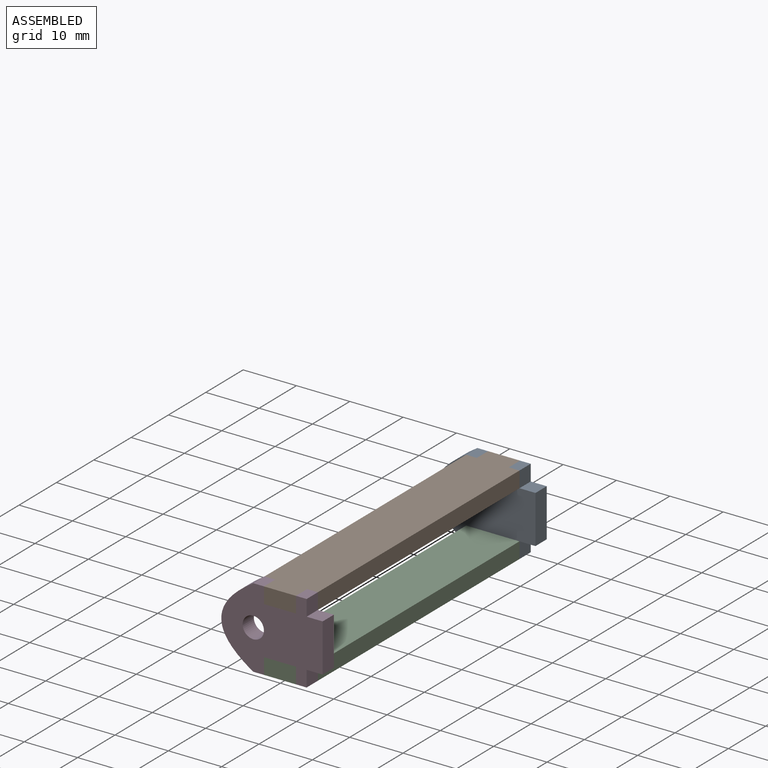
[diagram: assembled view]
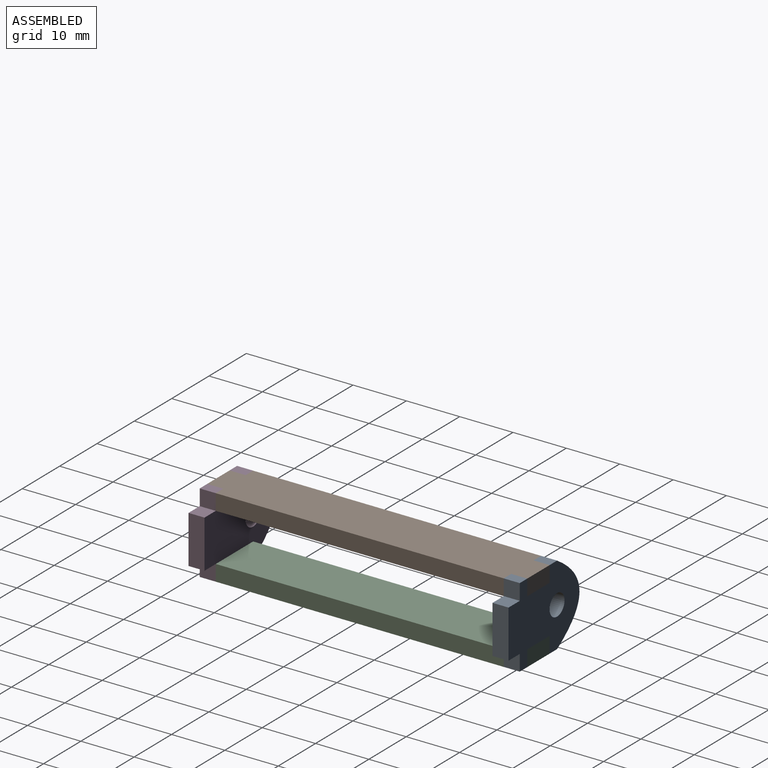
[diagram: assembled view, second angle]
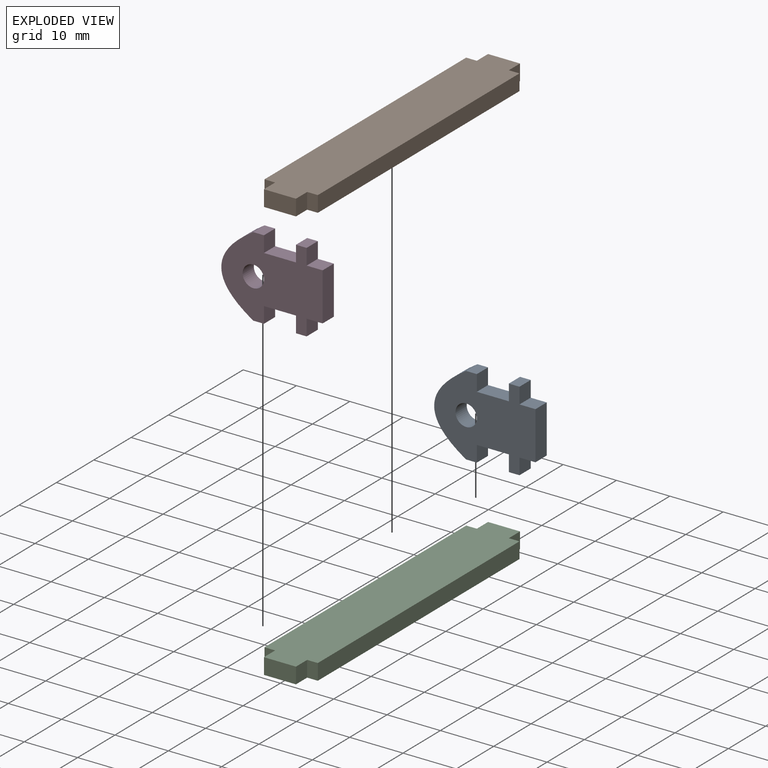
[diagram: exploded view]
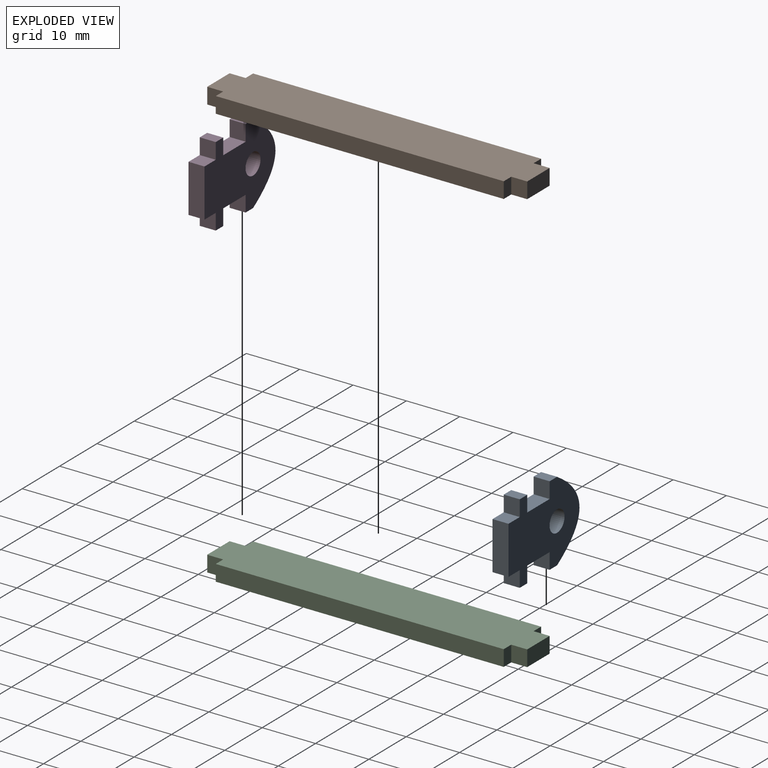
[diagram: exploded view, second angle]
ASSEMBLY  parts=4 mates=3
PART A: 19 faces, bbox 21.2x3x15 mm
  f0: plane 3x3mm, normal (0,0,-1), area 9mm2, adj f3,f4,f7,f18
  f1: plane 3x2mm, normal (0,0,-1), area 6mm2, adj f3,f4,f9,f12
  f2: plane 3x2mm, normal (0,0,1), area 6mm2, adj f3,f4,f9,f15
  f3: plane 21.24x15mm, normal (0,-1,0), area 188.4mm2, adj f0,f1,f2,f5,f6,f7,f8,f9
  f4: plane 21.24x15mm, normal (0,1,0), area 188.4mm2, adj f0,f1,f2,f5,f6,f7,f8,f9
  f5: plane 3x3mm, normal (1,0,0), area 9mm2, adj f3,f4,f8,f11
  f6: plane 3x2mm, normal (0,0,-1), area 6mm2, adj f3,f4,f7,f13
  f7: plane 3x3mm, normal (1,0,0), area 9mm2, adj f0,f3,f4,f6
  f8: plane 3x2mm, normal (0,0,1), area 6mm2, adj f3,f4,f5,f17
  f9: extruded ~15x6mm, area 60mm2, adj f1,f2,f3,f4
  f10: cylinder r=2mm len=4mm, axis (0,-1,0), area 37.7mm2, adj f3,f4
  f11: plane 3x3mm, normal (0,0,1), area 9mm2, adj f3,f4,f5,f18
  f12: plane 3x3mm, normal (1,0,0), area 9mm2, adj f1,f3,f4,f14
  f13: plane 3x3mm, normal (-1,0,0), area 9mm2, adj f3,f4,f6,f14
  f14: plane 6x3mm, normal (0,0,-1), area 18mm2, adj f3,f4,f12,f13
  f15: plane 3x3mm, normal (1,0,0), area 9mm2, adj f2,f3,f4,f16
  f16: plane 6x3mm, normal (0,0,1), area 18mm2, adj f3,f4,f15,f17
  f17: plane 3x3mm, normal (-1,0,0), area 9mm2, adj f3,f4,f8,f16
  f18: plane 9x3mm, normal (1,0,0), area 27mm2, adj f0,f3,f4,f11
PART B: 14 faces, bbox 60x3x10 mm
  f0: plane 3x2mm, normal (1,0,0), area 6mm2, adj f4,f6,f7,f13
  f1: plane 3x2mm, normal (-1,0,0), area 6mm2, adj f4,f6,f7,f9
  f2: plane 54x3mm, normal (0,0,-1), area 162mm2, adj f3,f5,f6,f7
  f3: plane 3x2mm, normal (1,0,0), area 6mm2, adj f2,f6,f7,f11
  f4: plane 54x3mm, normal (0,0,1), area 162mm2, adj f0,f1,f6,f7
  f5: plane 3x2mm, normal (-1,0,0), area 6mm2, adj f2,f6,f7,f8
  f6: plane 60x10mm, normal (0,-1,0), area 576mm2, adj f0,f1,f2,f3,f4,f5,f8,f9
  f7: plane 60x10mm, normal (0,1,0), area 576mm2, adj f0,f1,f2,f3,f4,f5,f8,f9
  f8: plane 3x3mm, normal (0,0,-1), area 9mm2, adj f5,f6,f7,f10
  f9: plane 3x3mm, normal (0,0,1), area 9mm2, adj f1,f6,f7,f10
  f10: plane 6x3mm, normal (-1,0,0), area 18mm2, adj f6,f7,f8,f9
  f11: plane 3x3mm, normal (0,0,-1), area 9mm2, adj f3,f6,f7,f12
  f12: plane 6x3mm, normal (1,0,0), area 18mm2, adj f6,f7,f11,f13
  f13: plane 3x3mm, normal (0,0,1), area 9mm2, adj f0,f6,f7,f12
PART C: same geometry as B
PART D: same geometry as A
PLACE A t=(-32.43,29.09,3.46)mm
PLACE B rot(axis=(-0.58,-0.58,0.58),120deg) t=(-32.43,-0.91,7.96)mm
PLACE C rot(axis=(-0.58,-0.58,0.58),120deg) t=(-32.43,-0.91,-4.04)mm
PLACE D t=(-32.43,-27.91,3.46)mm
MATE fastened C.f6 <-> A.f14  axis (0,0,1) through (-32.43,29.09,-1.04)mm
MATE fastened A.f16 <-> B.f7  axis (0,0,1) through (-32.43,29.09,7.96)mm
MATE fastened D.f16 <-> B.f7  axis (0,0,1) through (-32.43,-30.91,7.96)mm
